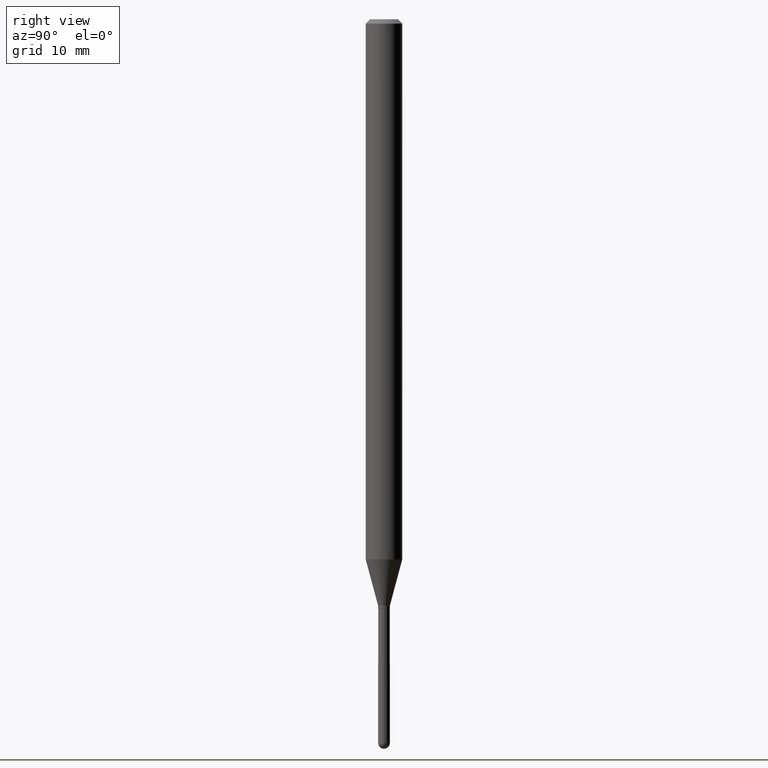
[diagram: clean part render]
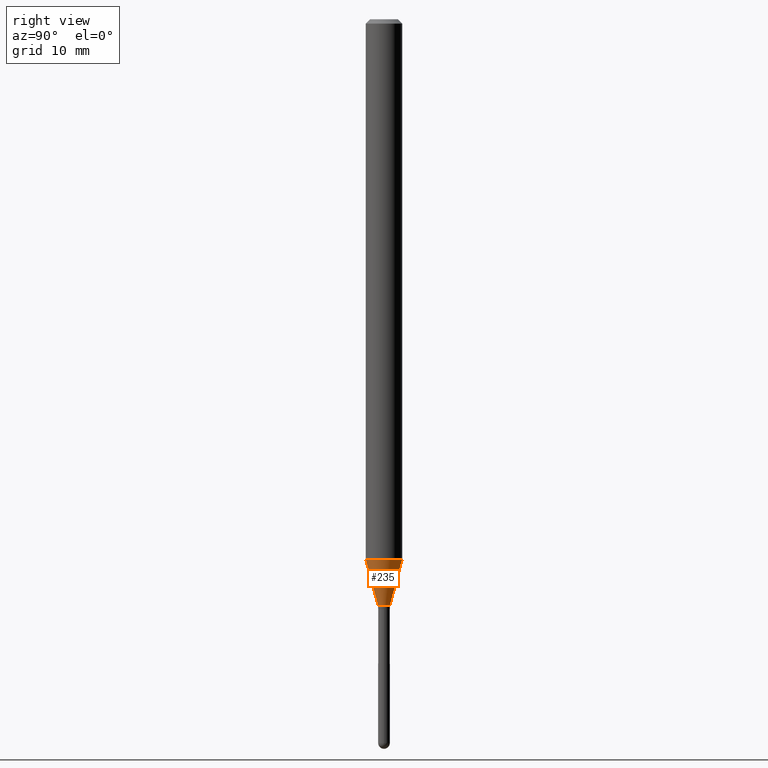
[diagram: same view with one face highlighted and labeled with its STEP entity id]
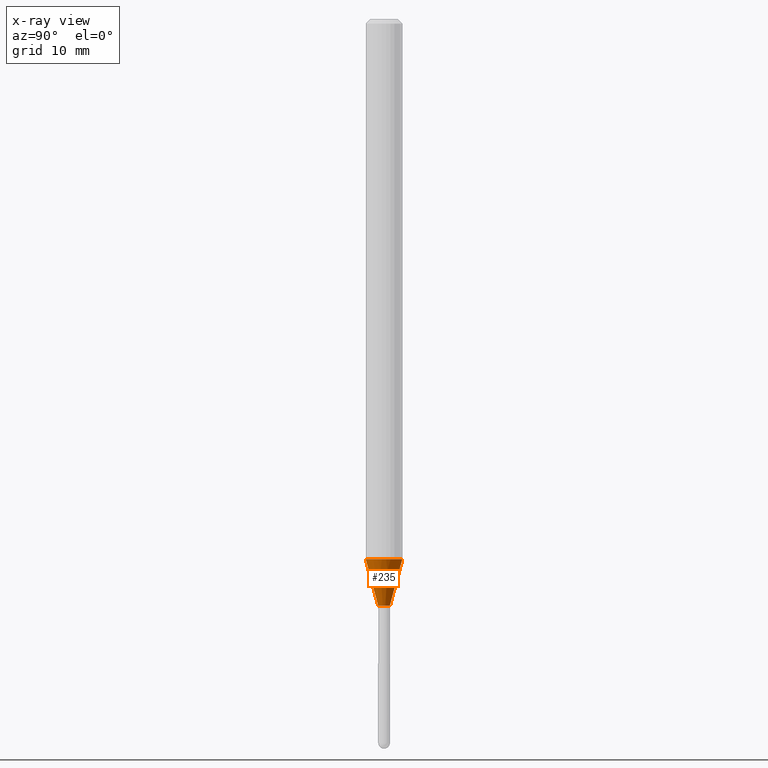
[diagram: x-ray of the same camera — body ghosted, the highlighted face saturated]
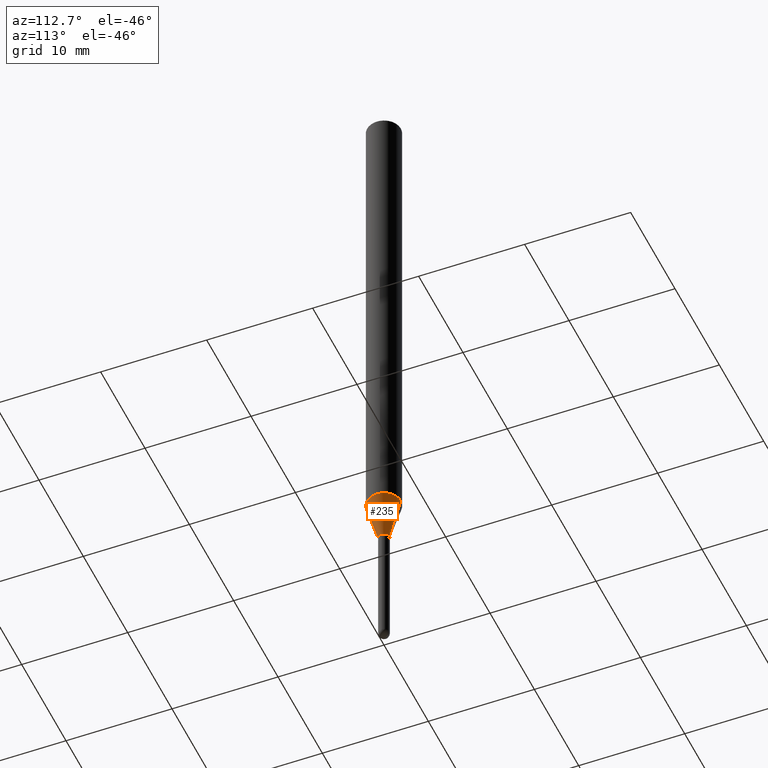
[diagram: same view with one face highlighted and labeled with its STEP entity id]
A machine part, right view. The second image highlights one B-rep face of the part: STEP entity #235.
The next image is the same camera in x-ray: the body ghosted, the highlighted face saturated — about 0% of this face is hidden behind the body in this view.
A second angle (auxiliary view) of the same face is appended — the face is thin or edge-on in the first view.
In plain terms, the highlighted conical surface has half-angle 15 deg.
Its self-contained STEP definition (entity closure, byte-faithful):
#11 = LINE ( 'NONE', #407, #413 ) ;
#38 = LINE ( 'NONE', #510, #374 ) ;
#59 = CIRCLE ( 'NONE', #168, 0.01999999999999992062 ) ;
#72 = FACE_OUTER_BOUND ( 'NONE', #105, .T. ) ;
#86 = DIRECTION ( 'NONE',  ( -2.445521062441042813E-29, 3.491406504910446446E-15, 1.000000000000000000 ) ) ;
#92 = ORIENTED_EDGE ( 'NONE', *, *, #433, .F. ) ;
#101 = EDGE_CURVE ( 'NONE', #272, #315, #59, .T. ) ;
#105 = EDGE_LOOP ( 'NONE', ( #352, #376, #92, #380 ) ) ;
#139 = CARTESIAN_POINT ( 'NONE',  ( 4.527607959126081686E-29, -6.463947550056403649E-15, -1.851387840678323293 ) ) ;
#145 = DIRECTION ( 'NONE',  ( -6.982962677686265922E-15, -1.000000000000000000, 4.370956789862821150E-15 ) ) ;
#165 = CARTESIAN_POINT ( 'NONE',  ( 4.915497335506496574E-29, -7.017727074869996788E-15, -2.010000000000000231 ) ) ;
#168 = AXIS2_PLACEMENT_3D ( 'NONE', #446, #359, #171 ) ;
#171 = DIRECTION ( 'NONE',  ( -6.982962677686265133E-15, -1.000000000000000000, 0.000000000000000000 ) ) ;
#209 = DIRECTION ( 'NONE',  ( -1.807323732225332900E-15, -0.2588190451025185745, 0.9659258262890689783 ) ) ;
#219 = CIRCLE ( 'NONE', #269, 0.06250000000000000000 ) ;
#222 = DIRECTION ( 'NONE',  ( -2.445521062441042813E-29, 3.491406504910446446E-15, 1.000000000000000000 ) ) ;
#235 = ADVANCED_FACE ( 'NONE', ( #72 ), #277, .T. ) ;
#248 = CARTESIAN_POINT ( 'NONE',  ( 4.440892098501075812E-16, 0.06249999999999351907, -1.851387840678323737 ) ) ;
#269 = AXIS2_PLACEMENT_3D ( 'NONE', #139, #222, #145 ) ;
#272 = VERTEX_POINT ( 'NONE', #483 ) ;
#274 = EDGE_CURVE ( 'NONE', #272, #469, #38, .T. ) ;
#277 = CONICAL_SURFACE ( 'NONE', #304, 0.01999999999999992062, 0.2617993877991506846 ) ;
#304 = AXIS2_PLACEMENT_3D ( 'NONE', #165, #86, #354 ) ;
#314 = CARTESIAN_POINT ( 'NONE',  ( 2.930988785010883270E-16, 0.01999999999999290193, -2.010000000000000231 ) ) ;
#315 = VERTEX_POINT ( 'NONE', #314 ) ;
#339 = VERTEX_POINT ( 'NONE', #248 ) ;
#352 = ORIENTED_EDGE ( 'NONE', *, *, #101, .T. ) ;
#354 = DIRECTION ( 'NONE',  ( -6.982962677686265133E-15, -1.000000000000000000, 0.000000000000000000 ) ) ;
#359 = DIRECTION ( 'NONE',  ( -2.445521062441042813E-29, 3.491406504910446446E-15, 1.000000000000000000 ) ) ;
#368 = DIRECTION ( 'NONE',  ( 1.839019923739603076E-15, 0.2588190451025253469, 0.9659258262890670910 ) ) ;
#374 = VECTOR ( 'NONE', #209, 39.37007874015748143 ) ;
#376 = ORIENTED_EDGE ( 'NONE', *, *, #488, .T. ) ;
#380 = ORIENTED_EDGE ( 'NONE', *, *, #274, .F. ) ;
#407 = CARTESIAN_POINT ( 'NONE',  ( 1.421085471520686044E-16, 0.01999999999999290193, -2.010000000000000231 ) ) ;
#413 = VECTOR ( 'NONE', #368, 39.37007874015748143 ) ;
#433 = EDGE_CURVE ( 'NONE', #469, #339, #219, .T. ) ;
#446 = CARTESIAN_POINT ( 'NONE',  ( 4.915497335506496574E-29, -7.017727074869996788E-15, -2.010000000000000231 ) ) ;
#469 = VERTEX_POINT ( 'NONE', #492 ) ;
#483 = CARTESIAN_POINT ( 'NONE',  ( -1.396592535536755916E-16, -0.02000000000000693584, -2.010000000000000231 ) ) ;
#488 = EDGE_CURVE ( 'NONE', #315, #339, #11, .T. ) ;
#492 = CARTESIAN_POINT ( 'NONE',  ( -4.364351673553464085E-16, -0.06250000000000648093, -1.851387840678323071 ) ) ;
#510 = CARTESIAN_POINT ( 'NONE',  ( -1.396592535536755916E-16, -0.02000000000000693584, -2.010000000000000231 ) ) ;